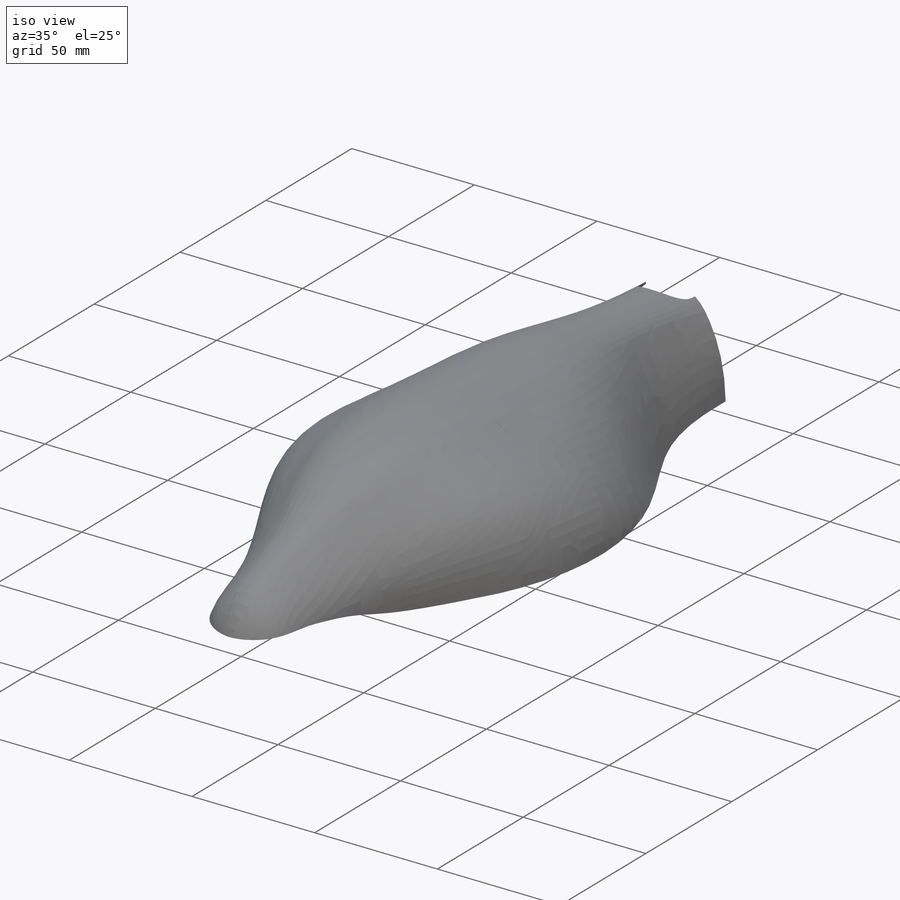
[diagram: iso view]
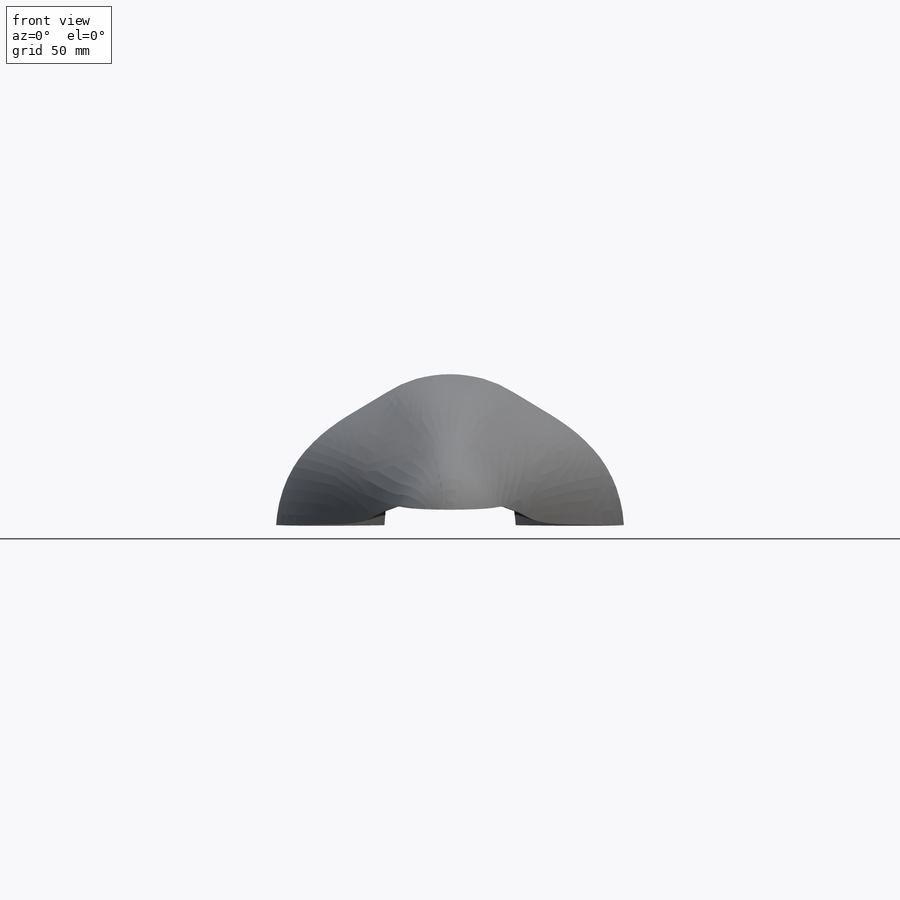
[diagram: front view]
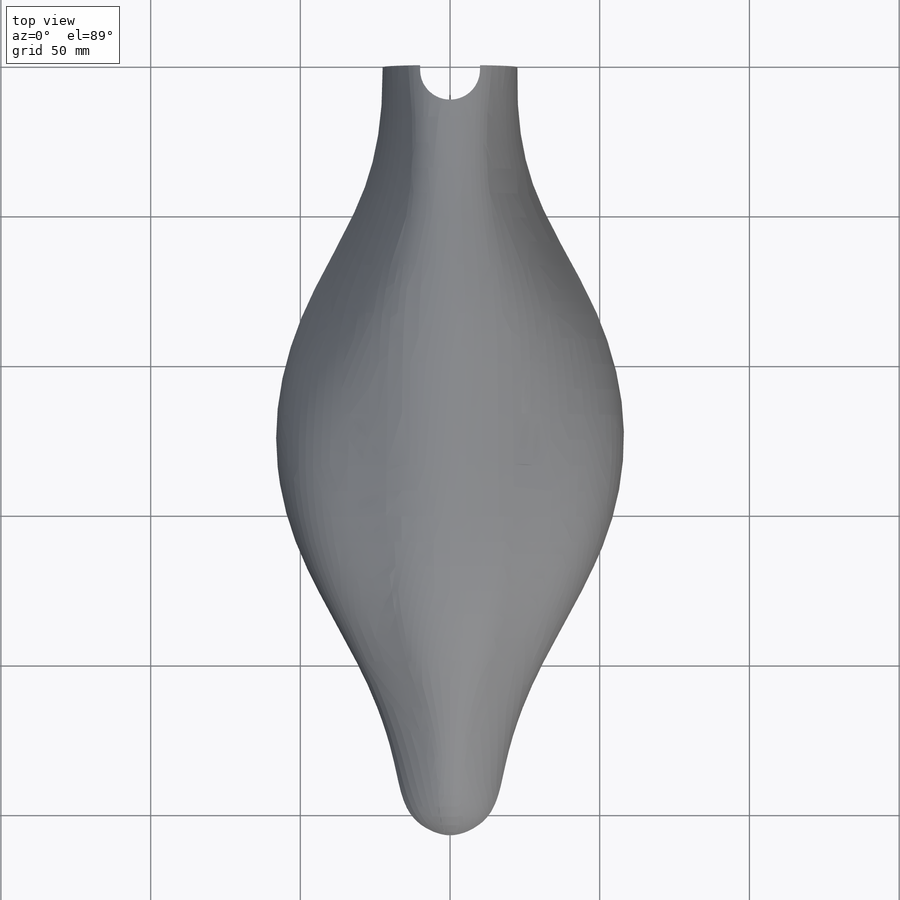
[diagram: top view]
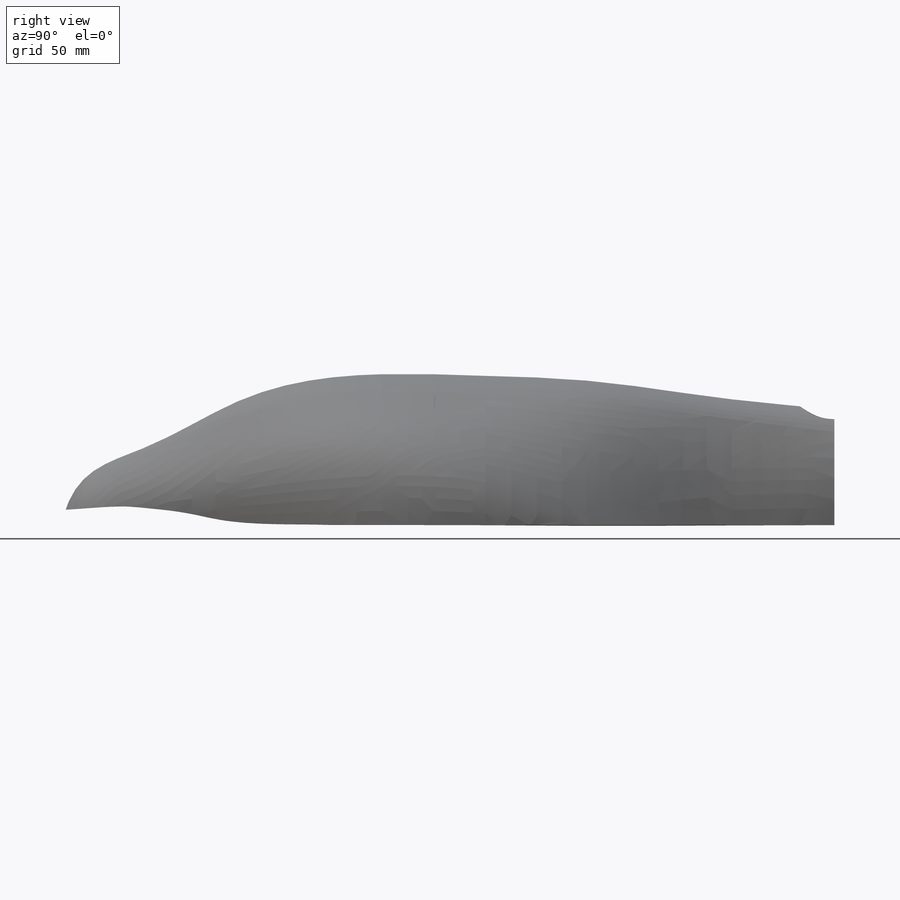
[diagram: right view]
SOLIDWORKS PART (.sldprt)
format: sldprt  version: not decoded by parser v0  size: 813,568 bytes
history: native  units: mm
features: sketch x12, plane x11, cut_extrude x2, material x1 (+8 scaffold rows collapsed)
feature tree (34):
  scaffold x8  (default folders/planes/origin — collapsed)
  material  "Matériau <non spécifié>"
  plane  "Face"
  plane  "Dessus"
  plane  "Droite"
  plane  "Plan1"  Offset=40mm
  plane  "Plan2"  Offset=40mm
  plane  "Plan3"  Offset=40mm
  plane  "Plan4"  Offset=40mm
  plane  "Plan5"  Offset=40mm
  plane  "Plan6"  Offset=30mm
  plane  "Plan7"  Offset=20mm
  plane  "Plan8"  Offset=8mm
  sketch  "Esquisse1"  dims[c1.D3=16.7mm c1.D1=44.0mm c1.D2=38.0mm c2.D1=22.5mm c2.D2=22.0mm c2.D4=0.6mm]
  sketch  "Esquisse3"  dims[c1.D2=16.1mm c1.D1=28.2mm c1.D3=26.5mm c2.D1=28.2mm c2.D3=0.6mm]
  sketch  "Esquisse4"  dims[D2=32.0mm D1=48.0mm D3=16.0mm D4=0.55mm]
  sketch  "Esquisse5"  dims[D2=38.0mm D1=58.0mm D3=12.0mm D4=0.5mm]
  sketch  "Esquisse6"  dims[c1.D2=38.0mm c1.D3=~25.336188mm c1.D1=51.0mm c2.D3=0.6mm]
  sketch  "Esquisse7"  dims[D2=20.0mm D1=30.2mm D3=21.0mm D4=0.5mm]
  sketch  "Esquisse8"  dims[D2=10.0mm D1=19.7mm D3=16.0mm D4=0.6mm]
  sketch  "Esquisse13"  dims[D2=8.0mm D1=8.0mm D3=13.9mm D4=0.5mm]
  sketch  "Esquisse16"  dims[D1=~0.256176mm D2=0.2mm]
  sketch  "Esquisse17"  dims[D1=2.5mm]
  sketch  "Esquisse18"  dims[D1=10.0mm]
  cut_extrude  "Extrusion1"  [1 undecoded]
  sketch  "Esquisse19"
  cut_extrude  "Extrusion2"  Depth=110mm
decode coverage: 12 of 14 modeling features carry decoded parameters
note: ~ marks probable driven/reference dimensions
note: 1 parameter value undecoded
note: suppression state not decoded; provenance and decode notes live in map.json
